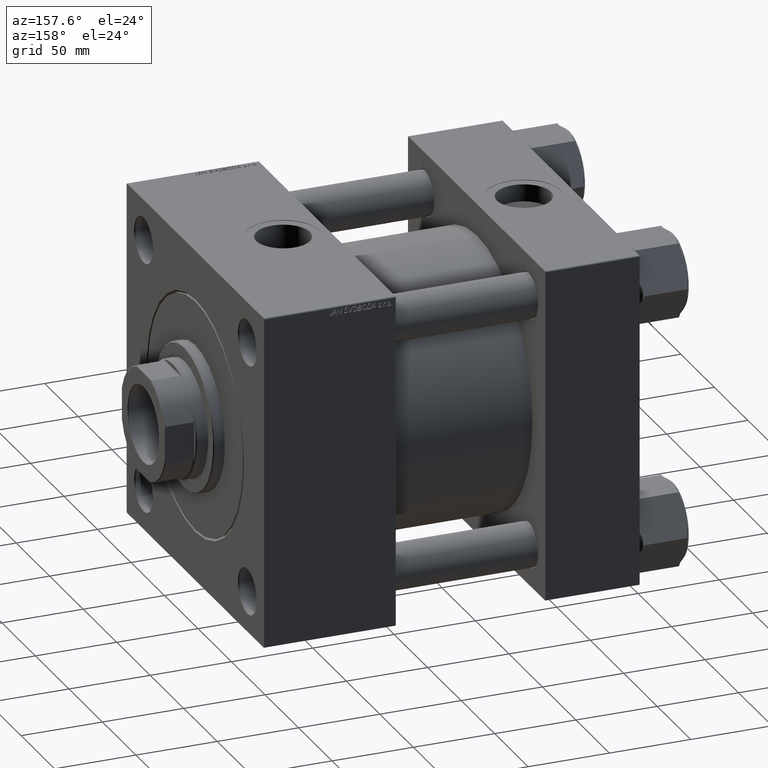
[diagram: clean part render]
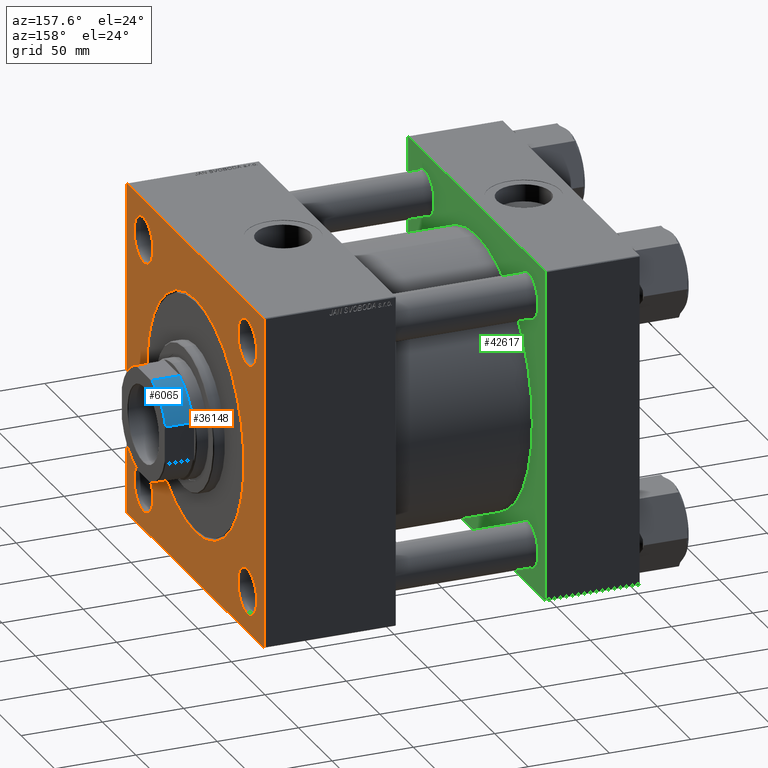
[diagram: same view with three faces highlighted in distinct colors, each labeled with its STEP entity id]
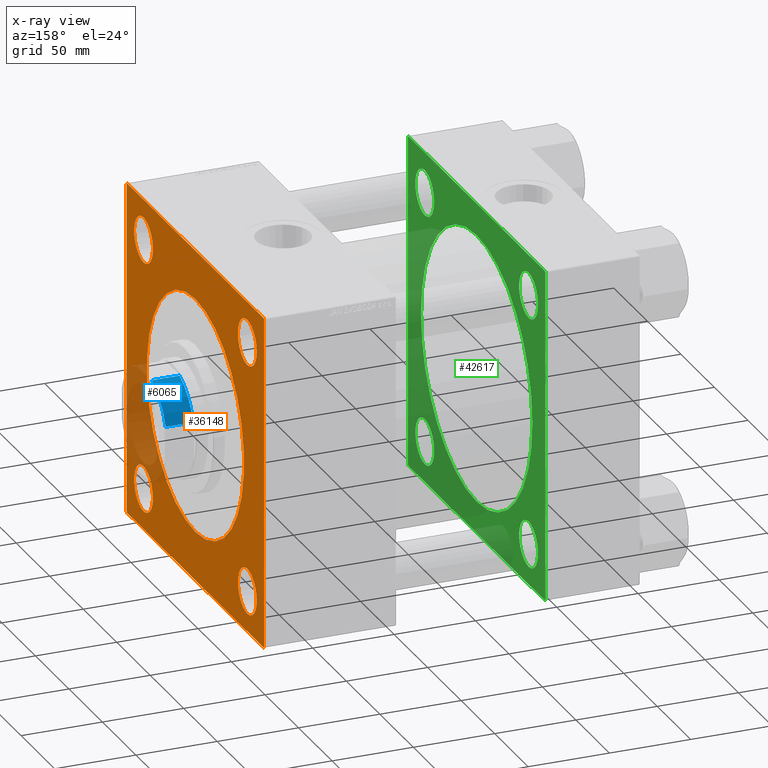
[diagram: x-ray of the same camera — body ghosted, the three highlighted faces saturated]
A machine part, auxiliary view with three faces highlighted in distinct colors.
The next image is the same camera in x-ray (body ghosted, the three faces saturated) — at least one of them is partly hidden behind the body in this view.
Their STEP definitions:

[orange] entity #36148 — the highlighted planar face has unit normal (-1, 0, 0).
#335 = AXIS2_PLACEMENT_3D ( 'NONE', #18839, #33989, #46281 ) ;
#577 = DIRECTION ( 'NONE',  ( 0.000000000000000000, 0.000000000000000000, 1.000000000000000000 ) ) ;
#727 = EDGE_LOOP ( 'NONE', ( #45767, #32660 ) ) ;
#1161 = DIRECTION ( 'NONE',  ( -1.000000000000000000, 0.000000000000000000, -0.000000000000000000 ) ) ;
#1837 = CARTESIAN_POINT ( 'NONE',  ( 230.9999999999999716, 102.5000000000000142, -102.4999999999999858 ) ) ;
#2703 = FACE_BOUND ( 'NONE', #727, .T. ) ;
#2953 = DIRECTION ( 'NONE',  ( -1.000000000000000000, 0.000000000000000000, -0.000000000000000000 ) ) ;
#3194 = FACE_BOUND ( 'NONE', #33853, .T. ) ;
#3302 = CARTESIAN_POINT ( 'NONE',  ( 230.9999999999999716, 77.45000000000000284, 77.44999999999998863 ) ) ;
#3339 = EDGE_LOOP ( 'NONE', ( #33735, #16746 ) ) ;
#4415 = VECTOR ( 'NONE', #46827, 1000.000000000000000 ) ;
#4916 = AXIS2_PLACEMENT_3D ( 'NONE', #47073, #31170, #27326 ) ;
#7711 = CARTESIAN_POINT ( 'NONE',  ( 230.9999999999999716, 0.000000000000000000, -72.50000000000001421 ) ) ;
#8260 = CARTESIAN_POINT ( 'NONE',  ( 230.9999999999999716, 102.0000000000000142, 102.5000000000000000 ) ) ;
#8506 = VECTOR ( 'NONE', #30860, 999.9999999999998863 ) ;
#9571 = VERTEX_POINT ( 'NONE', #28564 ) ;
#9963 = VERTEX_POINT ( 'NONE', #32367 ) ;
#11196 = CARTESIAN_POINT ( 'NONE',  ( 230.9999999999999716, -102.4999999999999858, 102.0000000000000142 ) ) ;
#11550 = CIRCLE ( 'NONE', #46764, 14.00000000000001243 ) ;
#11668 = EDGE_CURVE ( 'NONE', #9963, #38153, #20462, .T. ) ;
#11805 = EDGE_LOOP ( 'NONE', ( #16553, #50443 ) ) ;
#12280 = CARTESIAN_POINT ( 'NONE',  ( 230.9999999999999716, -77.44999999999998863, -91.45000000000000284 ) ) ;
#12880 = CARTESIAN_POINT ( 'NONE',  ( 230.9999999999999716, 102.0000000000000142, -102.4999999999999858 ) ) ;
#13297 = DIRECTION ( 'NONE',  ( -1.000000000000000000, 0.000000000000000000, -0.000000000000000000 ) ) ;
#13558 = DIRECTION ( 'NONE',  ( -1.000000000000000000, 0.000000000000000000, -0.000000000000000000 ) ) ;
#13796 = EDGE_CURVE ( 'NONE', #50081, #37596, #18682, .T. ) ;
#13886 = EDGE_CURVE ( 'NONE', #37596, #50081, #35872, .T. ) ;
#14102 = CIRCLE ( 'NONE', #20640, 72.50000000000001421 ) ;
#14924 = VERTEX_POINT ( 'NONE', #7711 ) ;
#15185 = CARTESIAN_POINT ( 'NONE',  ( 230.9999999999999716, -102.4999999999999858, -102.0000000000000711 ) ) ;
#15221 = ORIENTED_EDGE ( 'NONE', *, *, #17509, .T. ) ;
#15497 = EDGE_CURVE ( 'NONE', #46662, #25626, #38399, .T. ) ;
#15613 = VERTEX_POINT ( 'NONE', #50379 ) ;
#16133 = AXIS2_PLACEMENT_3D ( 'NONE', #16541, #1161, #28853 ) ;
#16199 = AXIS2_PLACEMENT_3D ( 'NONE', #45761, #18324, #37818 ) ;
#16541 = CARTESIAN_POINT ( 'NONE',  ( 230.9999999999999716, 0.000000000000000000, 0.000000000000000000 ) ) ;
#16553 = ORIENTED_EDGE ( 'NONE', *, *, #26579, .T. ) ;
#16731 = CARTESIAN_POINT ( 'NONE',  ( 230.9999999999999716, -77.44999999999998863, 77.45000000000001705 ) ) ;
#16746 = ORIENTED_EDGE ( 'NONE', *, *, #31251, .T. ) ;
#17509 = EDGE_CURVE ( 'NONE', #23496, #24629, #36521, .T. ) ;
#17984 = CARTESIAN_POINT ( 'NONE',  ( 230.9999999999999716, 77.45000000000000284, 63.44999999999998153 ) ) ;
#18324 = DIRECTION ( 'NONE',  ( -1.000000000000000000, 0.000000000000000000, -0.000000000000000000 ) ) ;
#18345 = ORIENTED_EDGE ( 'NONE', *, *, #15497, .T. ) ;
#18349 = FACE_OUTER_BOUND ( 'NONE', #32814, .T. ) ;
#18422 = CARTESIAN_POINT ( 'NONE',  ( 230.9999999999999716, 77.45000000000000284, 77.44999999999998863 ) ) ;
#18682 = CIRCLE ( 'NONE', #16199, 14.00000000000001243 ) ;
#18839 = CARTESIAN_POINT ( 'NONE',  ( 230.9999999999999716, 0.000000000000000000, 0.000000000000000000 ) ) ;
#19087 = FACE_BOUND ( 'NONE', #11805, .T. ) ;
#19296 = VERTEX_POINT ( 'NONE', #27860 ) ;
#19839 = ORIENTED_EDGE ( 'NONE', *, *, #43117, .T. ) ;
#19933 = VECTOR ( 'NONE', #47003, 1000.000000000000114 ) ;
#20462 = CIRCLE ( 'NONE', #30282, 14.00000000000001243 ) ;
#20640 = AXIS2_PLACEMENT_3D ( 'NONE', #41698, #2953, #34236 ) ;
#20789 = CIRCLE ( 'NONE', #35536, 14.00000000000001243 ) ;
#21102 = LINE ( 'NONE', #33410, #50078 ) ;
#21470 = CARTESIAN_POINT ( 'NONE',  ( 230.9999999999999716, -77.44999999999998863, -63.44999999999998153 ) ) ;
#21615 = DIRECTION ( 'NONE',  ( -0.000000000000000000, -0.7071067811865474617, -0.7071067811865474617 ) ) ;
#21683 = CARTESIAN_POINT ( 'NONE',  ( 230.9999999999999716, -77.44999999999998863, -77.44999999999998863 ) ) ;
#22686 = FACE_BOUND ( 'NONE', #3339, .T. ) ;
#22774 = AXIS2_PLACEMENT_3D ( 'NONE', #16731, #28789, #577 ) ;
#22932 = CIRCLE ( 'NONE', #4916, 14.00000000000001243 ) ;
#23175 = LINE ( 'NONE', #34457, #8506 ) ;
#23496 = VERTEX_POINT ( 'NONE', #15185 ) ;
#24629 = VERTEX_POINT ( 'NONE', #36438 ) ;
#24962 = EDGE_CURVE ( 'NONE', #15613, #25861, #21102, .T. ) ;
#25309 = CARTESIAN_POINT ( 'NONE',  ( 230.9999999999999716, 102.5000000000000142, 102.0000000000000000 ) ) ;
#25626 = VERTEX_POINT ( 'NONE', #12280 ) ;
#25861 = VERTEX_POINT ( 'NONE', #11196 ) ;
#25871 = VERTEX_POINT ( 'NONE', #26839 ) ;
#25879 = CARTESIAN_POINT ( 'NONE',  ( 230.9999999999999716, -77.44999999999998863, 91.45000000000003126 ) ) ;
#26579 = EDGE_CURVE ( 'NONE', #38153, #9963, #36196, .T. ) ;
#26839 = CARTESIAN_POINT ( 'NONE',  ( 230.9999999999999716, 102.5000000000000142, -101.9999999999999716 ) ) ;
#27326 = DIRECTION ( 'NONE',  ( 0.000000000000000000, 0.000000000000000000, 1.000000000000000000 ) ) ;
#27598 = EDGE_CURVE ( 'NONE', #14924, #29217, #14102, .T. ) ;
#27860 = CARTESIAN_POINT ( 'NONE',  ( 230.9999999999999716, 77.45000000000000284, 91.45000000000000284 ) ) ;
#28306 = ORIENTED_EDGE ( 'NONE', *, *, #43187, .T. ) ;
#28564 = CARTESIAN_POINT ( 'NONE',  ( 230.9999999999999716, 102.0000000000000142, 102.5000000000000000 ) ) ;
#28568 = CARTESIAN_POINT ( 'NONE',  ( 230.9999999999999716, -101.9999999999999858, -102.5000000000000568 ) ) ;
#28789 = DIRECTION ( 'NONE',  ( -1.000000000000000000, 0.000000000000000000, -0.000000000000000000 ) ) ;
#28853 = DIRECTION ( 'NONE',  ( 0.000000000000000000, 0.000000000000000000, 1.000000000000000000 ) ) ;
#29204 = DIRECTION ( 'NONE',  ( 0.000000000000000000, 0.000000000000000000, 1.000000000000000000 ) ) ;
#29217 = VERTEX_POINT ( 'NONE', #47380 ) ;
#29641 = ORIENTED_EDGE ( 'NONE', *, *, #31604, .F. ) ;
#29767 = VECTOR ( 'NONE', #37235, 1000.000000000000000 ) ;
#29957 = ORIENTED_EDGE ( 'NONE', *, *, #13886, .T. ) ;
#30253 = EDGE_CURVE ( 'NONE', #38528, #24629, #44933, .T. ) ;
#30282 = AXIS2_PLACEMENT_3D ( 'NONE', #34010, #41712, #37861 ) ;
#30496 = DIRECTION ( 'NONE',  ( -1.000000000000000000, 0.000000000000000000, -0.000000000000000000 ) ) ;
#30860 = DIRECTION ( 'NONE',  ( -0.000000000000000000, 0.7071067811865376918, 0.7071067811865574537 ) ) ;
#31123 = VECTOR ( 'NONE', #40385, 1000.000000000000000 ) ;
#31170 = DIRECTION ( 'NONE',  ( -1.000000000000000000, 0.000000000000000000, -0.000000000000000000 ) ) ;
#31251 = EDGE_CURVE ( 'NONE', #19296, #41556, #20789, .T. ) ;
#31604 = EDGE_CURVE ( 'NONE', #40212, #25871, #38878, .T. ) ;
#32367 = CARTESIAN_POINT ( 'NONE',  ( 230.9999999999999716, 77.45000000000000284, -63.44999999999998153 ) ) ;
#32373 = LINE ( 'NONE', #8260, #19933 ) ;
#32651 = AXIS2_PLACEMENT_3D ( 'NONE', #21683, #45023, #37330 ) ;
#32660 = ORIENTED_EDGE ( 'NONE', *, *, #40448, .T. ) ;
#32814 = EDGE_LOOP ( 'NONE', ( #37847, #15221, #33504, #34411, #29641, #46515, #28306, #45376 ) ) ;
#33410 = CARTESIAN_POINT ( 'NONE',  ( 230.9999999999999716, -102.4999999999999858, 102.0000000000000142 ) ) ;
#33504 = ORIENTED_EDGE ( 'NONE', *, *, #30253, .F. ) ;
#33632 = EDGE_CURVE ( 'NONE', #40212, #9571, #32373, .T. ) ;
#33735 = ORIENTED_EDGE ( 'NONE', *, *, #44500, .T. ) ;
#33737 = PLANE ( 'NONE',  #335 ) ;
#33853 = EDGE_LOOP ( 'NONE', ( #29957, #40865 ) ) ;
#33989 = DIRECTION ( 'NONE',  ( -1.000000000000000000, 0.000000000000000000, -0.000000000000000000 ) ) ;
#34010 = CARTESIAN_POINT ( 'NONE',  ( 230.9999999999999716, 77.45000000000000284, -77.44999999999998863 ) ) ;
#34191 = CIRCLE ( 'NONE', #16133, 72.50000000000001421 ) ;
#34236 = DIRECTION ( 'NONE',  ( 0.000000000000000000, 0.000000000000000000, 1.000000000000000000 ) ) ;
#34304 = EDGE_LOOP ( 'NONE', ( #19839, #18345 ) ) ;
#34411 = ORIENTED_EDGE ( 'NONE', *, *, #35227, .T. ) ;
#34457 = CARTESIAN_POINT ( 'NONE',  ( 230.9999999999999716, 102.5000000000000142, -101.9999999999999716 ) ) ;
#34771 = CARTESIAN_POINT ( 'NONE',  ( 230.9999999999999716, 102.5000000000000142, 102.5000000000000000 ) ) ;
#35227 = EDGE_CURVE ( 'NONE', #38528, #25871, #23175, .T. ) ;
#35295 = LINE ( 'NONE', #43761, #41262 ) ;
#35536 = AXIS2_PLACEMENT_3D ( 'NONE', #3302, #30496, #46897 ) ;
#35850 = EDGE_CURVE ( 'NONE', #25861, #23496, #35295, .T. ) ;
#35872 = CIRCLE ( 'NONE', #22774, 14.00000000000001243 ) ;
#36026 = LINE ( 'NONE', #40638, #31123 ) ;
#36148 = ADVANCED_FACE ( 'NONE', ( #22686, #3194, #37841, #19087, #2703, #18349 ), #33737, .F. ) ;
#36196 = CIRCLE ( 'NONE', #43604, 14.00000000000001243 ) ;
#36438 = CARTESIAN_POINT ( 'NONE',  ( 230.9999999999999716, -101.9999999999999289, -102.5000000000000568 ) ) ;
#36521 = LINE ( 'NONE', #28568, #45845 ) ;
#37235 = DIRECTION ( 'NONE',  ( 0.000000000000000000, -1.000000000000000000, -4.061791553506670919E-16 ) ) ;
#37330 = DIRECTION ( 'NONE',  ( 0.000000000000000000, 0.000000000000000000, 1.000000000000000000 ) ) ;
#37596 = VERTEX_POINT ( 'NONE', #48718 ) ;
#37818 = DIRECTION ( 'NONE',  ( 0.000000000000000000, 0.000000000000000000, 1.000000000000000000 ) ) ;
#37841 = FACE_BOUND ( 'NONE', #34304, .T. ) ;
#37847 = ORIENTED_EDGE ( 'NONE', *, *, #35850, .T. ) ;
#37861 = DIRECTION ( 'NONE',  ( 0.000000000000000000, 0.000000000000000000, 1.000000000000000000 ) ) ;
#38153 = VERTEX_POINT ( 'NONE', #46133 ) ;
#38399 = CIRCLE ( 'NONE', #32651, 14.00000000000001243 ) ;
#38528 = VERTEX_POINT ( 'NONE', #12880 ) ;
#38878 = LINE ( 'NONE', #34771, #4415 ) ;
#40212 = VERTEX_POINT ( 'NONE', #25309 ) ;
#40385 = DIRECTION ( 'NONE',  ( 0.000000000000000000, -1.000000000000000000, -1.353930517835556973E-16 ) ) ;
#40448 = EDGE_CURVE ( 'NONE', #29217, #14924, #34191, .T. ) ;
#40638 = CARTESIAN_POINT ( 'NONE',  ( 230.9999999999999716, 102.5000000000000142, 102.5000000000000000 ) ) ;
#40865 = ORIENTED_EDGE ( 'NONE', *, *, #13796, .T. ) ;
#41259 = CARTESIAN_POINT ( 'NONE',  ( 230.9999999999999716, 77.45000000000000284, -77.44999999999998863 ) ) ;
#41262 = VECTOR ( 'NONE', #50696, 1000.000000000000000 ) ;
#41556 = VERTEX_POINT ( 'NONE', #17984 ) ;
#41698 = CARTESIAN_POINT ( 'NONE',  ( 230.9999999999999716, 0.000000000000000000, 0.000000000000000000 ) ) ;
#41712 = DIRECTION ( 'NONE',  ( -1.000000000000000000, 0.000000000000000000, -0.000000000000000000 ) ) ;
#43117 = EDGE_CURVE ( 'NONE', #25626, #46662, #22932, .T. ) ;
#43187 = EDGE_CURVE ( 'NONE', #9571, #15613, #36026, .T. ) ;
#43604 = AXIS2_PLACEMENT_3D ( 'NONE', #41259, #13558, #29204 ) ;
#43761 = CARTESIAN_POINT ( 'NONE',  ( 230.9999999999999716, -102.4999999999999858, 102.4999999999999716 ) ) ;
#44222 = DIRECTION ( 'NONE',  ( 0.000000000000000000, 0.7071067811865573427, -0.7071067811865378028 ) ) ;
#44500 = EDGE_CURVE ( 'NONE', #41556, #19296, #11550, .T. ) ;
#44590 = DIRECTION ( 'NONE',  ( 0.000000000000000000, 0.000000000000000000, 1.000000000000000000 ) ) ;
#44933 = LINE ( 'NONE', #1837, #29767 ) ;
#45023 = DIRECTION ( 'NONE',  ( -1.000000000000000000, 0.000000000000000000, -0.000000000000000000 ) ) ;
#45376 = ORIENTED_EDGE ( 'NONE', *, *, #24962, .T. ) ;
#45761 = CARTESIAN_POINT ( 'NONE',  ( 230.9999999999999716, -77.44999999999998863, 77.45000000000001705 ) ) ;
#45767 = ORIENTED_EDGE ( 'NONE', *, *, #27598, .T. ) ;
#45845 = VECTOR ( 'NONE', #44222, 1000.000000000000000 ) ;
#46133 = CARTESIAN_POINT ( 'NONE',  ( 230.9999999999999716, 77.45000000000000284, -91.45000000000000284 ) ) ;
#46281 = DIRECTION ( 'NONE',  ( -0.000000000000000000, 0.000000000000000000, 1.000000000000000000 ) ) ;
#46515 = ORIENTED_EDGE ( 'NONE', *, *, #33632, .T. ) ;
#46662 = VERTEX_POINT ( 'NONE', #21470 ) ;
#46764 = AXIS2_PLACEMENT_3D ( 'NONE', #18422, #13297, #44590 ) ;
#46827 = DIRECTION ( 'NONE',  ( 0.000000000000000000, 0.000000000000000000, -1.000000000000000000 ) ) ;
#46897 = DIRECTION ( 'NONE',  ( 0.000000000000000000, 0.000000000000000000, 1.000000000000000000 ) ) ;
#47003 = DIRECTION ( 'NONE',  ( 0.000000000000000000, -0.7071067811865474617, 0.7071067811865474617 ) ) ;
#47073 = CARTESIAN_POINT ( 'NONE',  ( 230.9999999999999716, -77.44999999999998863, -77.44999999999998863 ) ) ;
#47380 = CARTESIAN_POINT ( 'NONE',  ( 230.9999999999999716, 8.878689293818310863E-15, 72.50000000000001421 ) ) ;
#48718 = CARTESIAN_POINT ( 'NONE',  ( 230.9999999999999716, -77.44999999999998863, 63.45000000000000284 ) ) ;
#50078 = VECTOR ( 'NONE', #21615, 1000.000000000000114 ) ;
#50081 = VERTEX_POINT ( 'NONE', #25879 ) ;
#50379 = CARTESIAN_POINT ( 'NONE',  ( 230.9999999999999716, -101.9999999999999858, 102.4999999999999716 ) ) ;
#50443 = ORIENTED_EDGE ( 'NONE', *, *, #11668, .T. ) ;
#50696 = DIRECTION ( 'NONE',  ( 0.000000000000000000, 0.000000000000000000, -1.000000000000000000 ) ) ;

[blue] entity #6065 — the highlighted cylindrical surface (partial cylindrical patch) has radius 34 mm, axis along (1, 0, -0).
#1506 = DIRECTION ( 'NONE',  ( -0.000000000000000000, -0.000000000000000000, 1.000000000000000000 ) ) ;
#4912 = CARTESIAN_POINT ( 'NONE',  ( 11.48912529307608033, -31.99999999999999289, 187.5000000000000284 ) ) ;
#6065 = ADVANCED_FACE ( 'NONE', ( #7812 ), #50416, .T. ) ;
#6500 = ORIENTED_EDGE ( 'NONE', *, *, #31117, .T. ) ;
#7151 = ORIENTED_EDGE ( 'NONE', *, *, #23097, .F. ) ;
#7812 = FACE_OUTER_BOUND ( 'NONE', #20987, .T. ) ;
#9602 = AXIS2_PLACEMENT_3D ( 'NONE', #46560, #39373, #35006 ) ;
#14538 = VERTEX_POINT ( 'NONE', #48422 ) ;
#17742 = CARTESIAN_POINT ( 'NONE',  ( 11.48912529307608033, -31.99999999999999289, 204.4999999999997442 ) ) ;
#17803 = DIRECTION ( 'NONE',  ( -0.000000000000000000, -0.000000000000000000, -1.000000000000000000 ) ) ;
#18468 = EDGE_CURVE ( 'NONE', #14538, #30008, #38363, .T. ) ;
#18745 = DIRECTION ( 'NONE',  ( -0.000000000000000000, -0.000000000000000000, 1.000000000000000000 ) ) ;
#19939 = AXIS2_PLACEMENT_3D ( 'NONE', #37697, #25112, #49502 ) ;
#20878 = CARTESIAN_POINT ( 'NONE',  ( 32.00000000000000000, -11.48912529307606256, 187.5000000000000853 ) ) ;
#20987 = EDGE_LOOP ( 'NONE', ( #33440, #45092, #7151, #6500 ) ) ;
#22343 = CARTESIAN_POINT ( 'NONE',  ( 32.00000000000000000, -11.48912529307606256, -0.001000000000001000089 ) ) ;
#23097 = EDGE_CURVE ( 'NONE', #27230, #30008, #44850, .T. ) ;
#24839 = CARTESIAN_POINT ( 'NONE',  ( 11.48912529307608033, -31.99999999999999289, -0.001000000000001000089 ) ) ;
#25112 = DIRECTION ( 'NONE',  ( -0.000000000000000000, -0.000000000000000000, 1.000000000000000000 ) ) ;
#27230 = VERTEX_POINT ( 'NONE', #4912 ) ;
#28955 = CIRCLE ( 'NONE', #19939, 34.00000000000000000 ) ;
#29610 = CARTESIAN_POINT ( 'NONE',  ( 0.000000000000000000, 0.000000000000000000, 204.4999999999998010 ) ) ;
#30008 = VERTEX_POINT ( 'NONE', #17742 ) ;
#31117 = EDGE_CURVE ( 'NONE', #27230, #37077, #28955, .T. ) ;
#33440 = ORIENTED_EDGE ( 'NONE', *, *, #46066, .T. ) ;
#35006 = DIRECTION ( 'NONE',  ( 1.000000000000000000, 0.000000000000000000, 0.000000000000000000 ) ) ;
#37077 = VERTEX_POINT ( 'NONE', #20878 ) ;
#37697 = CARTESIAN_POINT ( 'NONE',  ( 0.000000000000000000, 0.000000000000000000, 187.5000000000000853 ) ) ;
#38363 = CIRCLE ( 'NONE', #41672, 34.00000000000000000 ) ;
#39373 = DIRECTION ( 'NONE',  ( -0.000000000000000000, -0.000000000000000000, 1.000000000000000000 ) ) ;
#41672 = AXIS2_PLACEMENT_3D ( 'NONE', #29610, #17803, #45254 ) ;
#41846 = LINE ( 'NONE', #22343, #45966 ) ;
#42607 = VECTOR ( 'NONE', #1506, 1000.000000000000000 ) ;
#44850 = LINE ( 'NONE', #24839, #42607 ) ;
#45092 = ORIENTED_EDGE ( 'NONE', *, *, #18468, .T. ) ;
#45254 = DIRECTION ( 'NONE',  ( 1.000000000000000000, 0.000000000000000000, 0.000000000000000000 ) ) ;
#45966 = VECTOR ( 'NONE', #18745, 1000.000000000000000 ) ;
#46066 = EDGE_CURVE ( 'NONE', #37077, #14538, #41846, .T. ) ;
#46560 = CARTESIAN_POINT ( 'NONE',  ( 0.000000000000000000, 0.000000000000000000, -0.001000000000001000089 ) ) ;
#48422 = CARTESIAN_POINT ( 'NONE',  ( 32.00000000000000000, -11.48912529307606256, 204.4999999999997442 ) ) ;
#49502 = DIRECTION ( 'NONE',  ( -1.000000000000000000, 0.000000000000000000, 0.000000000000000000 ) ) ;
#50416 = CYLINDRICAL_SURFACE ( 'NONE', #9602, 34.00000000000000000 ) ;

[green] entity #42617 — the highlighted planar face has unit normal (-1, 0, 0).
#288 = DIRECTION ( 'NONE',  ( 0.000000000000000000, -1.000000000000000000, -2.030895776753335460E-16 ) ) ;
#345 = EDGE_LOOP ( 'NONE', ( #32518, #48059 ) ) ;
#647 = EDGE_LOOP ( 'NONE', ( #11389, #24686 ) ) ;
#744 = CARTESIAN_POINT ( 'NONE',  ( 58.00000000000000000, 77.45000000000000284, -77.44999999999998863 ) ) ;
#1132 = DIRECTION ( 'NONE',  ( -1.000000000000000000, 0.000000000000000000, -0.000000000000000000 ) ) ;
#2627 = ORIENTED_EDGE ( 'NONE', *, *, #10826, .F. ) ;
#3295 = FACE_BOUND ( 'NONE', #647, .T. ) ;
#3380 = VERTEX_POINT ( 'NONE', #49056 ) ;
#3698 = ORIENTED_EDGE ( 'NONE', *, *, #8889, .T. ) ;
#3950 = AXIS2_PLACEMENT_3D ( 'NONE', #744, #44598, #44852 ) ;
#3969 = CARTESIAN_POINT ( 'NONE',  ( 58.00000000000000000, -77.44999999999997442, -77.45000000000000284 ) ) ;
#4050 = AXIS2_PLACEMENT_3D ( 'NONE', #32116, #16196, #22032 ) ;
#5227 = DIRECTION ( 'NONE',  ( 0.000000000000000000, 0.000000000000000000, 1.000000000000000000 ) ) ;
#5325 = EDGE_CURVE ( 'NONE', #27220, #12971, #16146, .T. ) ;
#5410 = EDGE_CURVE ( 'NONE', #9442, #9964, #18046, .T. ) ;
#5659 = DIRECTION ( 'NONE',  ( 0.000000000000000000, 0.000000000000000000, 1.000000000000000000 ) ) ;
#6641 = DIRECTION ( 'NONE',  ( -0.000000000000000000, 0.000000000000000000, 1.000000000000000000 ) ) ;
#7772 = DIRECTION ( 'NONE',  ( 0.000000000000000000, 0.000000000000000000, -1.000000000000000000 ) ) ;
#7893 = EDGE_CURVE ( 'NONE', #43451, #14612, #49815, .T. ) ;
#8093 = ORIENTED_EDGE ( 'NONE', *, *, #9012, .T. ) ;
#8889 = EDGE_CURVE ( 'NONE', #30037, #27920, #26427, .T. ) ;
#9005 = CARTESIAN_POINT ( 'NONE',  ( 58.00000000000000000, 102.5000000000000000, -102.4999999999999289 ) ) ;
#9012 = EDGE_CURVE ( 'NONE', #3380, #16041, #43292, .T. ) ;
#9236 = EDGE_CURVE ( 'NONE', #15170, #35031, #23275, .T. ) ;
#9442 = VERTEX_POINT ( 'NONE', #10662 ) ;
#9738 = CIRCLE ( 'NONE', #47410, 13.99999999999979039 ) ;
#9964 = VERTEX_POINT ( 'NONE', #12871 ) ;
#10020 = CARTESIAN_POINT ( 'NONE',  ( 57.99999999999999289, -2.602085213965210642E-15, 0.000000000000000000 ) ) ;
#10029 = DIRECTION ( 'NONE',  ( -1.000000000000000000, 0.000000000000000000, -0.000000000000000000 ) ) ;
#10093 = DIRECTION ( 'NONE',  ( 0.000000000000000000, -0.7071067811865474617, 0.7071067811865474617 ) ) ;
#10277 = DIRECTION ( 'NONE',  ( 1.000000000000000000, -0.000000000000000000, 0.000000000000000000 ) ) ;
#10558 = DIRECTION ( 'NONE',  ( 0.000000000000000000, 0.000000000000000000, 1.000000000000000000 ) ) ;
#10662 = CARTESIAN_POINT ( 'NONE',  ( 58.00000000000000000, 102.5000000000000000, 102.0000000000000142 ) ) ;
#10826 = EDGE_CURVE ( 'NONE', #13171, #35031, #20296, .T. ) ;
#11389 = ORIENTED_EDGE ( 'NONE', *, *, #29745, .F. ) ;
#11470 = AXIS2_PLACEMENT_3D ( 'NONE', #37433, #34087, #6641 ) ;
#11539 = DIRECTION ( 'NONE',  ( -0.000000000000000000, -0.7071067811865376918, -0.7071067811865574537 ) ) ;
#11620 = CARTESIAN_POINT ( 'NONE',  ( 57.99999999999999289, 7.562483218957820855E-15, -83.00000000000000000 ) ) ;
#12219 = CARTESIAN_POINT ( 'NONE',  ( 58.00000000000000000, -77.44999999999997442, 91.44999999999978968 ) ) ;
#12248 = EDGE_CURVE ( 'NONE', #34129, #44573, #26968, .T. ) ;
#12554 = ORIENTED_EDGE ( 'NONE', *, *, #38590, .T. ) ;
#12871 = CARTESIAN_POINT ( 'NONE',  ( 58.00000000000000000, 102.5000000000000000, -101.9999999999999005 ) ) ;
#12971 = VERTEX_POINT ( 'NONE', #41409 ) ;
#13171 = VERTEX_POINT ( 'NONE', #29548 ) ;
#14175 = VERTEX_POINT ( 'NONE', #16916 ) ;
#14461 = DIRECTION ( 'NONE',  ( 1.000000000000000000, -0.000000000000000000, 0.000000000000000000 ) ) ;
#14464 = LINE ( 'NONE', #34442, #19522 ) ;
#14612 = VERTEX_POINT ( 'NONE', #21226 ) ;
#15159 = EDGE_CURVE ( 'NONE', #12971, #27220, #9738, .T. ) ;
#15166 = CIRCLE ( 'NONE', #18454, 13.99999999999979039 ) ;
#15170 = VERTEX_POINT ( 'NONE', #42801 ) ;
#15326 = DIRECTION ( 'NONE',  ( 0.000000000000000000, 0.000000000000000000, 1.000000000000000000 ) ) ;
#16041 = VERTEX_POINT ( 'NONE', #29200 ) ;
#16146 = CIRCLE ( 'NONE', #42341, 13.99999999999979039 ) ;
#16196 = DIRECTION ( 'NONE',  ( -1.000000000000000000, 0.000000000000000000, -0.000000000000000000 ) ) ;
#16265 = DIRECTION ( 'NONE',  ( -1.000000000000000000, 0.000000000000000000, -0.000000000000000000 ) ) ;
#16607 = CARTESIAN_POINT ( 'NONE',  ( 58.00000000000000000, -101.9999999999999147, -102.4999999999999716 ) ) ;
#16916 = CARTESIAN_POINT ( 'NONE',  ( 58.00000000000000000, 102.0000000000000000, 102.5000000000000142 ) ) ;
#17873 = EDGE_CURVE ( 'NONE', #31477, #30095, #39277, .T. ) ;
#18046 = LINE ( 'NONE', #28826, #34965 ) ;
#18080 = EDGE_LOOP ( 'NONE', ( #39891, #34775 ) ) ;
#18234 = CIRCLE ( 'NONE', #41189, 13.99999999999979039 ) ;
#18407 = EDGE_CURVE ( 'NONE', #30095, #31477, #32649, .T. ) ;
#18454 = AXIS2_PLACEMENT_3D ( 'NONE', #33642, #30301, #10558 ) ;
#18537 = EDGE_CURVE ( 'NONE', #13171, #9964, #14464, .T. ) ;
#18938 = FACE_BOUND ( 'NONE', #29131, .T. ) ;
#19452 = DIRECTION ( 'NONE',  ( -1.000000000000000000, 0.000000000000000000, -0.000000000000000000 ) ) ;
#19510 = VECTOR ( 'NONE', #11539, 999.9999999999998863 ) ;
#19522 = VECTOR ( 'NONE', #30605, 1000.000000000000114 ) ;
#20164 = ORIENTED_EDGE ( 'NONE', *, *, #47209, .T. ) ;
#20296 = LINE ( 'NONE', #9005, #32595 ) ;
#21226 = CARTESIAN_POINT ( 'NONE',  ( 57.99999999999999289, -2.602085213965210642E-15, 83.00000000000000000 ) ) ;
#21458 = ORIENTED_EDGE ( 'NONE', *, *, #5410, .F. ) ;
#21885 = LINE ( 'NONE', #29845, #47879 ) ;
#22000 = AXIS2_PLACEMENT_3D ( 'NONE', #3969, #16265, #49105 ) ;
#22032 = DIRECTION ( 'NONE',  ( 0.000000000000000000, 0.000000000000000000, 1.000000000000000000 ) ) ;
#22036 = FACE_BOUND ( 'NONE', #18080, .T. ) ;
#22926 = EDGE_LOOP ( 'NONE', ( #2627, #38091, #21458, #43759, #20164, #3698, #23174, #26586 ) ) ;
#23174 = ORIENTED_EDGE ( 'NONE', *, *, #24806, .T. ) ;
#23197 = AXIS2_PLACEMENT_3D ( 'NONE', #45999, #14461, #29349 ) ;
#23275 = LINE ( 'NONE', #31217, #37583 ) ;
#23657 = CARTESIAN_POINT ( 'NONE',  ( 58.00000000000000000, -77.44999999999997442, -91.44999999999978968 ) ) ;
#24686 = ORIENTED_EDGE ( 'NONE', *, *, #7893, .F. ) ;
#24806 = EDGE_CURVE ( 'NONE', #27920, #15170, #42925, .T. ) ;
#25408 = CARTESIAN_POINT ( 'NONE',  ( 58.00000000000000000, -77.44999999999997442, 77.45000000000000284 ) ) ;
#26387 = FACE_BOUND ( 'NONE', #28556, .T. ) ;
#26427 = LINE ( 'NONE', #27183, #19510 ) ;
#26586 = ORIENTED_EDGE ( 'NONE', *, *, #9236, .T. ) ;
#26968 = CIRCLE ( 'NONE', #4050, 13.99999999999979039 ) ;
#27159 = DIRECTION ( 'NONE',  ( 0.000000000000000000, 0.000000000000000000, 1.000000000000000000 ) ) ;
#27183 = CARTESIAN_POINT ( 'NONE',  ( 58.00000000000000000, -102.4999999999999858, 101.9999999999999574 ) ) ;
#27220 = VERTEX_POINT ( 'NONE', #43650 ) ;
#27731 = EDGE_CURVE ( 'NONE', #44573, #34129, #18234, .T. ) ;
#27920 = VERTEX_POINT ( 'NONE', #42327 ) ;
#28556 = EDGE_LOOP ( 'NONE', ( #8093, #12554 ) ) ;
#28618 = AXIS2_PLACEMENT_3D ( 'NONE', #30486, #46131, #15326 ) ;
#28826 = CARTESIAN_POINT ( 'NONE',  ( 58.00000000000000000, 102.5000000000000000, 102.5000000000000142 ) ) ;
#29044 = LINE ( 'NONE', #32128, #50100 ) ;
#29131 = EDGE_LOOP ( 'NONE', ( #34749, #44653 ) ) ;
#29200 = CARTESIAN_POINT ( 'NONE',  ( 58.00000000000000000, 77.45000000000000284, -63.45000000000020179 ) ) ;
#29349 = DIRECTION ( 'NONE',  ( 0.000000000000000000, 0.000000000000000000, 1.000000000000000000 ) ) ;
#29548 = CARTESIAN_POINT ( 'NONE',  ( 58.00000000000000000, 101.9999999999999716, -102.4999999999999289 ) ) ;
#29745 = EDGE_CURVE ( 'NONE', #14612, #43451, #42040, .T. ) ;
#29845 = CARTESIAN_POINT ( 'NONE',  ( 58.00000000000000000, 102.0000000000000000, 102.5000000000000142 ) ) ;
#29995 = FACE_BOUND ( 'NONE', #345, .T. ) ;
#30037 = VERTEX_POINT ( 'NONE', #38293 ) ;
#30095 = VERTEX_POINT ( 'NONE', #23657 ) ;
#30301 = DIRECTION ( 'NONE',  ( -1.000000000000000000, 0.000000000000000000, -0.000000000000000000 ) ) ;
#30486 = CARTESIAN_POINT ( 'NONE',  ( 58.00000000000000000, -77.44999999999997442, -77.45000000000000284 ) ) ;
#30605 = DIRECTION ( 'NONE',  ( -0.000000000000000000, 0.7071067811865474617, 0.7071067811865474617 ) ) ;
#31217 = CARTESIAN_POINT ( 'NONE',  ( 58.00000000000000000, -101.9999999999999147, -102.4999999999999716 ) ) ;
#31477 = VERTEX_POINT ( 'NONE', #33526 ) ;
#32116 = CARTESIAN_POINT ( 'NONE',  ( 58.00000000000000000, -77.44999999999997442, 77.45000000000000284 ) ) ;
#32128 = CARTESIAN_POINT ( 'NONE',  ( 58.00000000000000000, 102.5000000000000000, 102.5000000000000142 ) ) ;
#32518 = ORIENTED_EDGE ( 'NONE', *, *, #15159, .T. ) ;
#32595 = VECTOR ( 'NONE', #288, 1000.000000000000000 ) ;
#32649 = CIRCLE ( 'NONE', #22000, 13.99999999999979039 ) ;
#33526 = CARTESIAN_POINT ( 'NONE',  ( 58.00000000000000000, -77.44999999999997442, -63.45000000000021600 ) ) ;
#33642 = CARTESIAN_POINT ( 'NONE',  ( 58.00000000000000000, 77.45000000000000284, -77.44999999999998863 ) ) ;
#34087 = DIRECTION ( 'NONE',  ( -1.000000000000000000, 0.000000000000000000, -0.000000000000000000 ) ) ;
#34129 = VERTEX_POINT ( 'NONE', #48346 ) ;
#34219 = CARTESIAN_POINT ( 'NONE',  ( 58.00000000000000000, -102.4999999999999858, 102.4999999999999858 ) ) ;
#34442 = CARTESIAN_POINT ( 'NONE',  ( 58.00000000000000000, 102.5000000000000000, -101.9999999999999005 ) ) ;
#34597 = CARTESIAN_POINT ( 'NONE',  ( 58.00000000000000000, 77.45000000000000284, 77.44999999999998863 ) ) ;
#34749 = ORIENTED_EDGE ( 'NONE', *, *, #18407, .T. ) ;
#34775 = ORIENTED_EDGE ( 'NONE', *, *, #27731, .T. ) ;
#34965 = VECTOR ( 'NONE', #41393, 1000.000000000000000 ) ;
#35031 = VERTEX_POINT ( 'NONE', #16607 ) ;
#37200 = EDGE_CURVE ( 'NONE', #9442, #14175, #21885, .T. ) ;
#37433 = CARTESIAN_POINT ( 'NONE',  ( 58.00000000000000000, 0.000000000000000000, 0.000000000000000000 ) ) ;
#37583 = VECTOR ( 'NONE', #40679, 1000.000000000000114 ) ;
#38091 = ORIENTED_EDGE ( 'NONE', *, *, #18537, .T. ) ;
#38293 = CARTESIAN_POINT ( 'NONE',  ( 58.00000000000000000, -101.9999999999999716, 102.4999999999999858 ) ) ;
#38435 = PLANE ( 'NONE',  #11470 ) ;
#38590 = EDGE_CURVE ( 'NONE', #16041, #3380, #15166, .T. ) ;
#39277 = CIRCLE ( 'NONE', #28618, 13.99999999999979039 ) ;
#39864 = CARTESIAN_POINT ( 'NONE',  ( 58.00000000000000000, 77.45000000000000284, 77.44999999999998863 ) ) ;
#39891 = ORIENTED_EDGE ( 'NONE', *, *, #12248, .T. ) ;
#40679 = DIRECTION ( 'NONE',  ( 0.000000000000000000, 0.7071067811865474617, -0.7071067811865474617 ) ) ;
#41189 = AXIS2_PLACEMENT_3D ( 'NONE', #25408, #10029, #5659 ) ;
#41317 = DIRECTION ( 'NONE',  ( 0.000000000000000000, 0.000000000000000000, 1.000000000000000000 ) ) ;
#41393 = DIRECTION ( 'NONE',  ( 0.000000000000000000, 0.000000000000000000, -1.000000000000000000 ) ) ;
#41409 = CARTESIAN_POINT ( 'NONE',  ( 58.00000000000000000, 77.45000000000000284, 63.45000000000020179 ) ) ;
#42040 = CIRCLE ( 'NONE', #23197, 83.00000000000000000 ) ;
#42327 = CARTESIAN_POINT ( 'NONE',  ( 58.00000000000000000, -102.4999999999999858, 101.9999999999999574 ) ) ;
#42341 = AXIS2_PLACEMENT_3D ( 'NONE', #39864, #1132, #5227 ) ;
#42617 = ADVANCED_FACE ( 'NONE', ( #18938, #26387, #22036, #29995, #3295, #45637 ), #38435, .F. ) ;
#42801 = CARTESIAN_POINT ( 'NONE',  ( 58.00000000000000000, -102.4999999999999858, -101.9999999999999005 ) ) ;
#42925 = LINE ( 'NONE', #34219, #43523 ) ;
#43292 = CIRCLE ( 'NONE', #3950, 13.99999999999979039 ) ;
#43451 = VERTEX_POINT ( 'NONE', #11620 ) ;
#43523 = VECTOR ( 'NONE', #7772, 1000.000000000000000 ) ;
#43650 = CARTESIAN_POINT ( 'NONE',  ( 58.00000000000000000, 77.45000000000000284, 91.44999999999977547 ) ) ;
#43759 = ORIENTED_EDGE ( 'NONE', *, *, #37200, .T. ) ;
#44573 = VERTEX_POINT ( 'NONE', #12219 ) ;
#44598 = DIRECTION ( 'NONE',  ( -1.000000000000000000, 0.000000000000000000, -0.000000000000000000 ) ) ;
#44653 = ORIENTED_EDGE ( 'NONE', *, *, #17873, .T. ) ;
#44852 = DIRECTION ( 'NONE',  ( 0.000000000000000000, 0.000000000000000000, 1.000000000000000000 ) ) ;
#45637 = FACE_OUTER_BOUND ( 'NONE', #22926, .T. ) ;
#45999 = CARTESIAN_POINT ( 'NONE',  ( 57.99999999999999289, -2.602085213965210642E-15, 0.000000000000000000 ) ) ;
#46131 = DIRECTION ( 'NONE',  ( -1.000000000000000000, 0.000000000000000000, -0.000000000000000000 ) ) ;
#47209 = EDGE_CURVE ( 'NONE', #14175, #30037, #29044, .T. ) ;
#47410 = AXIS2_PLACEMENT_3D ( 'NONE', #34597, #19452, #27159 ) ;
#47778 = DIRECTION ( 'NONE',  ( 0.000000000000000000, -1.000000000000000000, -1.353930517835556973E-16 ) ) ;
#47879 = VECTOR ( 'NONE', #10093, 1000.000000000000114 ) ;
#48059 = ORIENTED_EDGE ( 'NONE', *, *, #5325, .T. ) ;
#48346 = CARTESIAN_POINT ( 'NONE',  ( 58.00000000000000000, -77.44999999999997442, 63.45000000000021600 ) ) ;
#48979 = AXIS2_PLACEMENT_3D ( 'NONE', #10020, #10277, #41317 ) ;
#49056 = CARTESIAN_POINT ( 'NONE',  ( 58.00000000000000000, 77.45000000000000284, -91.44999999999977547 ) ) ;
#49105 = DIRECTION ( 'NONE',  ( 0.000000000000000000, 0.000000000000000000, 1.000000000000000000 ) ) ;
#49815 = CIRCLE ( 'NONE', #48979, 83.00000000000000000 ) ;
#50100 = VECTOR ( 'NONE', #47778, 1000.000000000000000 ) ;